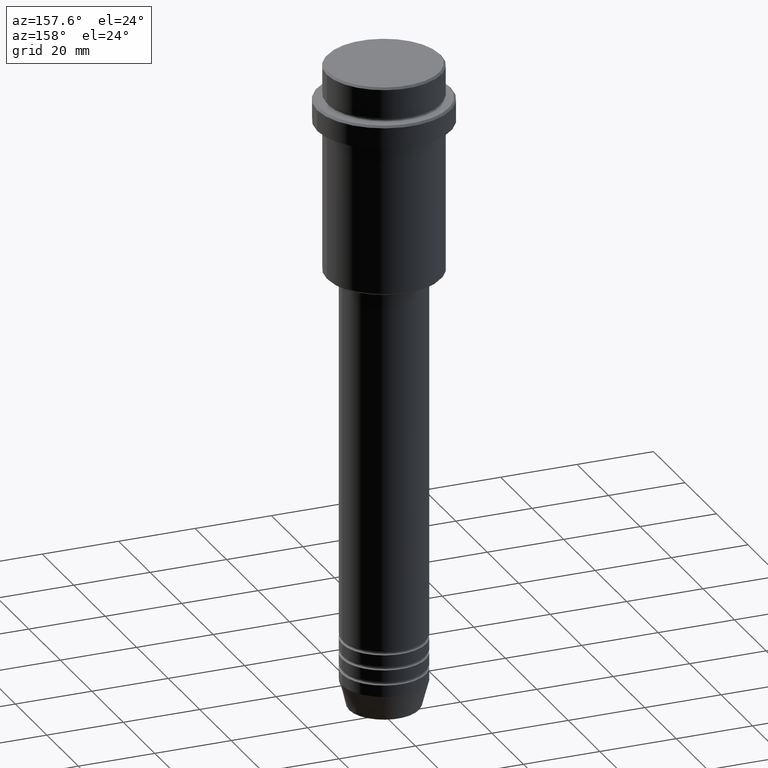
[diagram: clean part render]
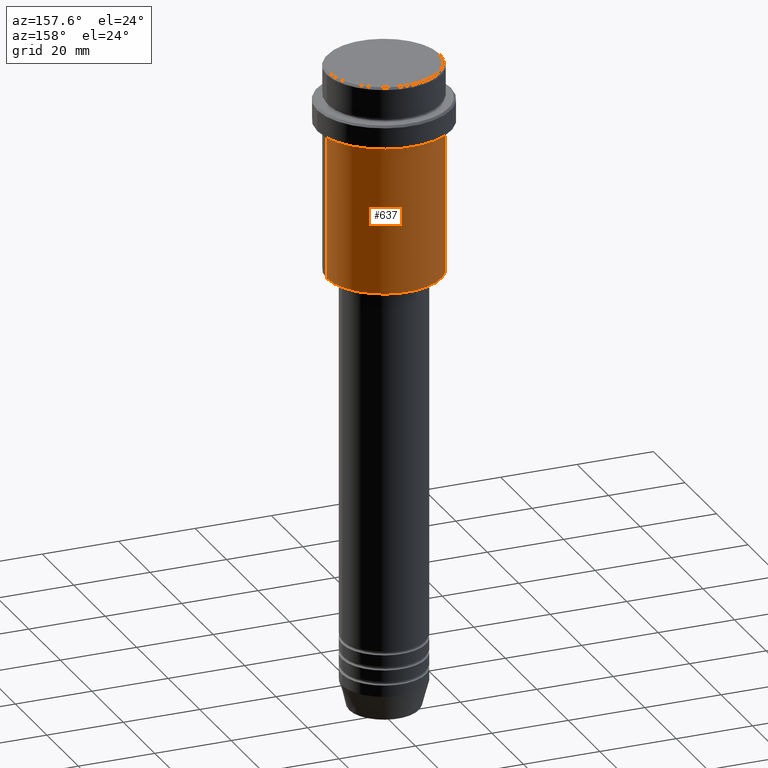
[diagram: same view with one face highlighted and labeled with its STEP entity id]
A machine part, auxiliary view. The second image highlights one B-rep face of the part: STEP entity #637.
In plain terms, the highlighted cylindrical surface (partial cylindrical patch) has radius 15 mm, axis along (-0, -0, 1).
Its self-contained STEP definition (entity closure, byte-faithful):
#2 = LINE ( 'NONE', #1091, #731 ) ;
#60 = DIRECTION ( 'NONE',  ( -0.000000000000000000, -0.000000000000000000, 1.000000000000000000 ) ) ;
#111 = CARTESIAN_POINT ( 'NONE',  ( 0.000000000000000000, 0.000000000000000000, 0.000000000000000000 ) ) ;
#141 = VERTEX_POINT ( 'NONE', #740 ) ;
#159 = EDGE_LOOP ( 'NONE', ( #1183, #1128, #1013, #1311 ) ) ;
#263 = CYLINDRICAL_SURFACE ( 'NONE', #820, 15.00000000000000000 ) ;
#294 = CARTESIAN_POINT ( 'NONE',  ( 15.00000000000000178, 0.000000000000000000, -15.99999999999997335 ) ) ;
#368 = VERTEX_POINT ( 'NONE', #1119 ) ;
#398 = EDGE_CURVE ( 'NONE', #668, #368, #1017, .T. ) ;
#474 = DIRECTION ( 'NONE',  ( -0.000000000000000000, -0.000000000000000000, 1.000000000000000000 ) ) ;
#480 = CIRCLE ( 'NONE', #1133, 15.00000000000000178 ) ;
#521 = VERTEX_POINT ( 'NONE', #294 ) ;
#637 = ADVANCED_FACE ( 'NONE', ( #872 ), #263, .T. ) ;
#649 = DIRECTION ( 'NONE',  ( -0.000000000000000000, -0.000000000000000000, 1.000000000000000000 ) ) ;
#665 = CARTESIAN_POINT ( 'NONE',  ( 15.00000000000000000, 0.000000000000000000, -54.49999999999995737 ) ) ;
#668 = VERTEX_POINT ( 'NONE', #665 ) ;
#693 = DIRECTION ( 'NONE',  ( 1.000000000000000000, 0.000000000000000000, 0.000000000000000000 ) ) ;
#705 = EDGE_CURVE ( 'NONE', #521, #141, #480, .T. ) ;
#731 = VECTOR ( 'NONE', #649, 1000.000000000000000 ) ;
#740 = CARTESIAN_POINT ( 'NONE',  ( -15.00000000000000355, 1.836970198721029983E-15, -15.99999999999997335 ) ) ;
#765 = DIRECTION ( 'NONE',  ( -0.000000000000000000, -0.000000000000000000, 1.000000000000000000 ) ) ;
#806 = CARTESIAN_POINT ( 'NONE',  ( 0.000000000000000000, 0.000000000000000000, -15.99999999999997335 ) ) ;
#820 = AXIS2_PLACEMENT_3D ( 'NONE', #111, #765, #693 ) ;
#837 = EDGE_CURVE ( 'NONE', #368, #141, #1039, .T. ) ;
#872 = FACE_OUTER_BOUND ( 'NONE', #159, .T. ) ;
#888 = EDGE_CURVE ( 'NONE', #668, #521, #2, .T. ) ;
#901 = DIRECTION ( 'NONE',  ( -1.000000000000000000, 0.000000000000000000, 0.000000000000000000 ) ) ;
#923 = CARTESIAN_POINT ( 'NONE',  ( 0.000000000000000000, 0.000000000000000000, -54.49999999999995737 ) ) ;
#956 = AXIS2_PLACEMENT_3D ( 'NONE', #923, #474, #901 ) ;
#1013 = ORIENTED_EDGE ( 'NONE', *, *, #705, .F. ) ;
#1016 = DIRECTION ( 'NONE',  ( -0.000000000000000000, -0.000000000000000000, 1.000000000000000000 ) ) ;
#1017 = CIRCLE ( 'NONE', #956, 15.00000000000000000 ) ;
#1039 = LINE ( 'NONE', #1143, #1347 ) ;
#1091 = CARTESIAN_POINT ( 'NONE',  ( 15.00000000000000000, 0.000000000000000000, 0.000000000000000000 ) ) ;
#1119 = CARTESIAN_POINT ( 'NONE',  ( -15.00000000000000000, 1.836970198721029589E-15, -54.49999999999995737 ) ) ;
#1128 = ORIENTED_EDGE ( 'NONE', *, *, #837, .T. ) ;
#1133 = AXIS2_PLACEMENT_3D ( 'NONE', #806, #1016, #1240 ) ;
#1143 = CARTESIAN_POINT ( 'NONE',  ( -15.00000000000000000, 1.836970198721029589E-15, 0.000000000000000000 ) ) ;
#1183 = ORIENTED_EDGE ( 'NONE', *, *, #398, .T. ) ;
#1240 = DIRECTION ( 'NONE',  ( 1.000000000000000000, 0.000000000000000000, 0.000000000000000000 ) ) ;
#1311 = ORIENTED_EDGE ( 'NONE', *, *, #888, .F. ) ;
#1347 = VECTOR ( 'NONE', #60, 1000.000000000000000 ) ;